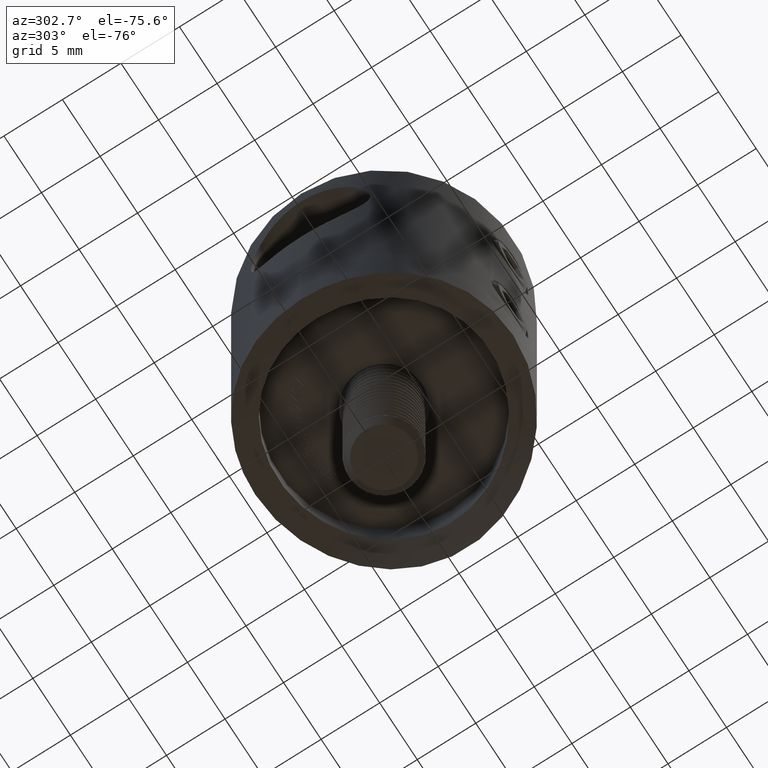
[diagram: clean part render]
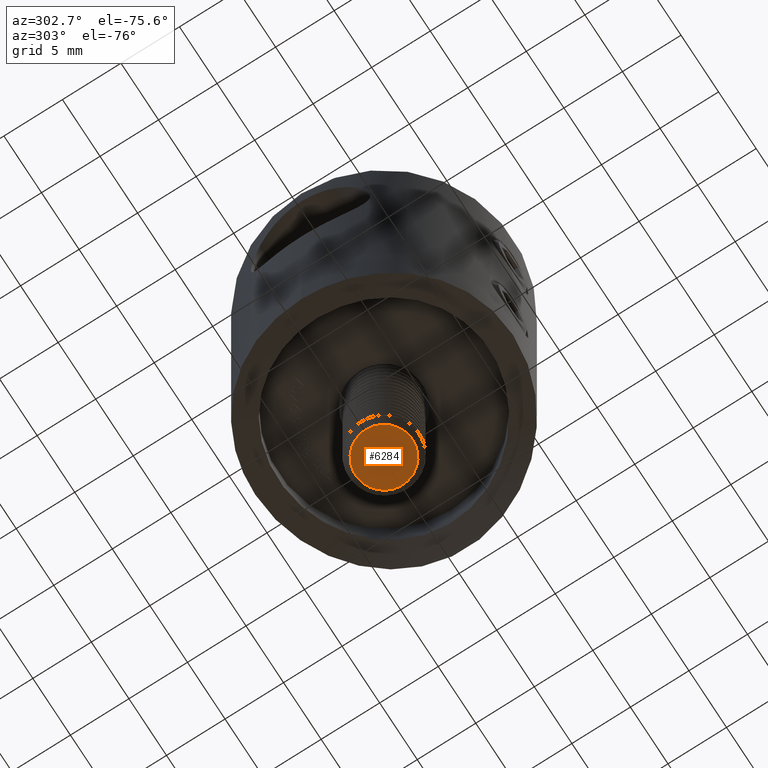
[diagram: same view with one face highlighted and labeled with its STEP entity id]
A machine part, auxiliary view. The second image highlights one B-rep face of the part: STEP entity #6284.
In plain terms, the highlighted planar face has unit normal (0, 0, -1).
Its self-contained STEP definition (entity closure, byte-faithful):
#776 = EDGE_LOOP ( 'NONE', ( #19034 ) ) ;
#3076 = FACE_OUTER_BOUND ( 'NONE', #776, .T. ) ;
#4546 = AXIS2_PLACEMENT_3D ( 'NONE', #16735, #11454, #12978 ) ;
#6284 = ADVANCED_FACE ( 'NONE', ( #3076 ), #7605, .T. ) ;
#7605 = PLANE ( 'NONE',  #4546 ) ;
#7637 = CARTESIAN_POINT ( 'NONE',  ( 25.00000000000000000, 0.0000000000000000000, 0.0000000000000000000 ) ) ;
#11252 = DIRECTION ( 'NONE',  ( 0.0000000000000000000, 0.0000000000000000000, 1.000000000000000000 ) ) ;
#11454 = DIRECTION ( 'NONE',  ( 1.000000000000000000, 0.0000000000000000000, 0.0000000000000000000 ) ) ;
#11905 = AXIS2_PLACEMENT_3D ( 'NONE', #7637, #22008, #11252 ) ;
#12978 = DIRECTION ( 'NONE',  ( 0.0000000000000000000, 0.0000000000000000000, -1.000000000000000000 ) ) ;
#14384 = CIRCLE ( 'NONE', #11905, 2.445500000000000000 ) ;
#16735 = CARTESIAN_POINT ( 'NONE',  ( 25.00000000000000000, 2.445500000000000000, 0.0000000000000000000 ) ) ;
#19034 = ORIENTED_EDGE ( 'NONE', *, *, #21620, .F. ) ;
#20687 = VERTEX_POINT ( 'NONE', #22871 ) ;
#21620 = EDGE_CURVE ( 'NONE', #20687, #20687, #14384, .T. ) ;
#22008 = DIRECTION ( 'NONE',  ( -1.000000000000000000, -0.0000000000000000000, -0.0000000000000000000 ) ) ;
#22871 = CARTESIAN_POINT ( 'NONE',  ( 25.00000000000000000, 0.0000000000000000000, 2.445500000000000000 ) ) ;